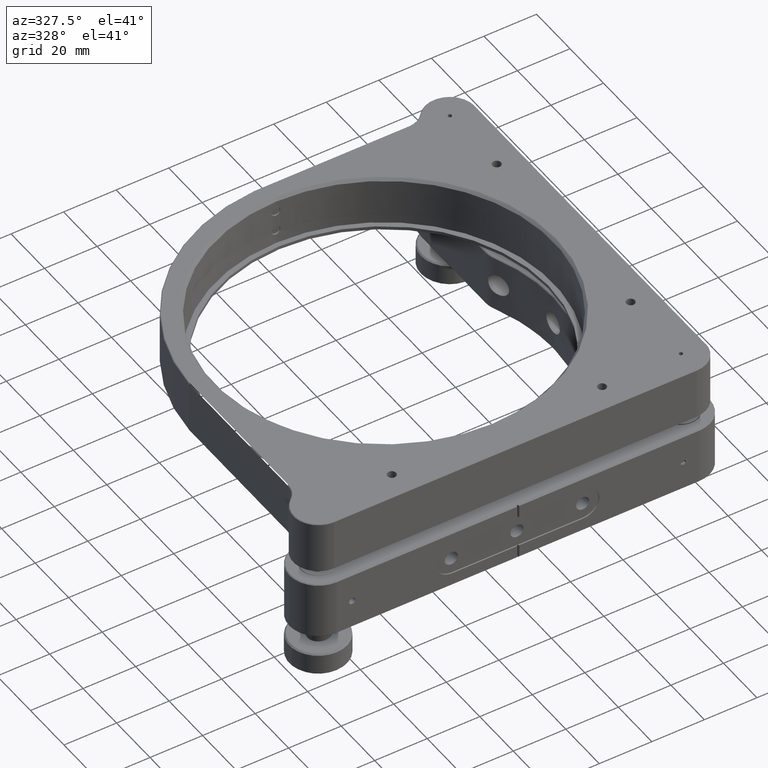
[diagram: clean part render]
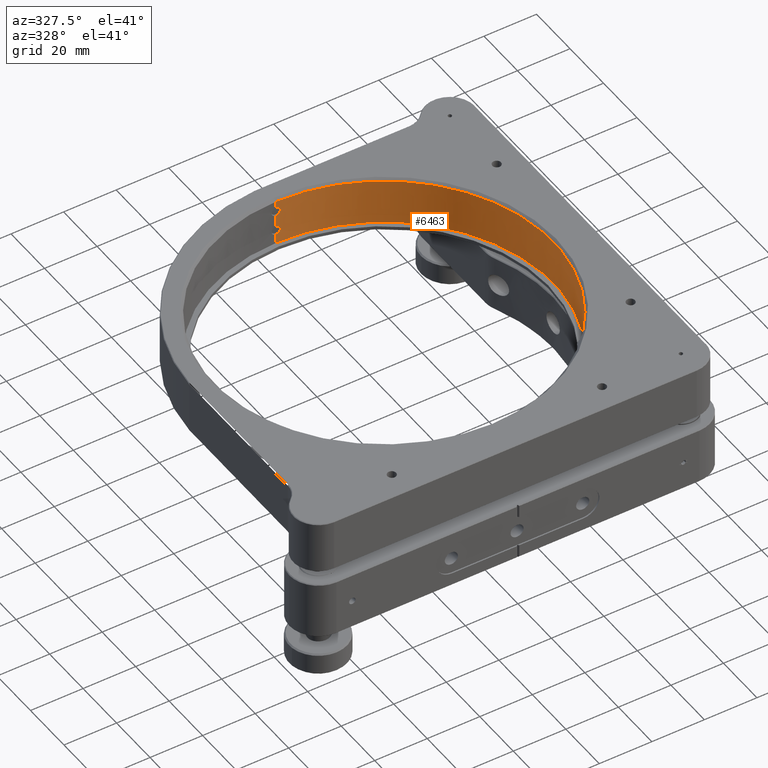
[diagram: same view with one face highlighted and labeled with its STEP entity id]
A machine part, auxiliary view. The second image highlights one B-rep face of the part: STEP entity #6463.
In plain terms, the highlighted cylindrical surface (partial cylindrical patch) has radius 64.5 mm, axis along (0, -0, 1).
Its self-contained STEP definition (entity closure, byte-faithful):
#49 = CARTESIAN_POINT ( 'NONE',  ( 1.483389418160524942, 64.48295332111487710, 29.41889207625427005 ) ) ;
#111 = VERTEX_POINT ( 'NONE', #7603 ) ;
#493 = CARTESIAN_POINT ( 'NONE',  ( 0.4345575816018733550, 64.49884148809803719, 28.54330444036808601 ) ) ;
#891 = CARTESIAN_POINT ( 'NONE',  ( 1.243653708613569275, 64.48805407642646514, 29.05980491757268780 ) ) ;
#974 = CARTESIAN_POINT ( 'NONE',  ( 1.565235788478800405, 64.48101855675774630, 22.68260206664128731 ) ) ;
#1029 = DIRECTION ( 'NONE',  ( -6.383782391594628414E-16, 1.000000000000000000, 0.000000000000000000 ) ) ;
#1142 = CARTESIAN_POINT ( 'NONE',  ( 1.482380926038727953, 64.48297654405071455, 22.88210197707731908 ) ) ;
#1205 = VERTEX_POINT ( 'NONE', #6742 ) ;
#1315 = CARTESIAN_POINT ( 'NONE',  ( 1.311710810243492675, 64.48668865513950266, 31.15625234921494879 ) ) ;
#1395 = CARTESIAN_POINT ( 'NONE',  ( 1.242015895805314907, 64.48808565504012336, 31.24103801797199509 ) ) ;
#1602 = DIRECTION ( 'NONE',  ( -1.460576560598794809E-21, 9.396343987072984124E-36, -1.000000000000000000 ) ) ;
#1708 = EDGE_CURVE ( 'NONE', #111, #17108, #4916, .T. ) ;
#1731 = CARTESIAN_POINT ( 'NONE',  ( -6.893123849958146566E-14, 64.50000000000132161, -167.0340546095175966 ) ) ;
#2105 = CIRCLE ( 'NONE', #11532, 64.50000000000137845 ) ;
#2232 = CARTESIAN_POINT ( 'NONE',  ( 0.8294962466272529644, 64.49497166998335729, 31.59193023313750714 ) ) ;
#2371 = CARTESIAN_POINT ( 'NONE',  ( -6.893095707050450094E-14, 64.49999999999992895, 34.39949493661166713 ) ) ;
#2401 = ORIENTED_EDGE ( 'NONE', *, *, #2573, .T. ) ;
#2486 = CARTESIAN_POINT ( 'NONE',  ( 1.639162032005684555, 64.47917175699497250, 22.36677457183865414 ) ) ;
#2573 = EDGE_CURVE ( 'NONE', #14255, #1205, #2610, .T. ) ;
#2610 = LINE ( 'NONE', #7824, #9097 ) ;
#2711 = CIRCLE ( 'NONE', #11561, 64.50000000000137845 ) ;
#2999 = CARTESIAN_POINT ( 'NONE',  ( -6.893123849958146566E-14, 64.50000000000132161, -167.0340546095175966 ) ) ;
#3224 = CARTESIAN_POINT ( 'NONE',  ( -6.751036948072414653E-14, 64.49999999999992895, 23.79949493661167281 ) ) ;
#3448 = B_SPLINE_CURVE_WITH_KNOTS ( 'NONE', 3,
 ( #15914, #5271, #11974, #17339, #14914, #5087, #13326, #16177, #1142, #974, #17516, #2486, #17424, #14831, #3743, #7683, #17248, #9102, #7957, #15997, #9193, #12158, #6612, #3836 ),
 .UNSPECIFIED., .F., .F.,
 ( 4, 2, 2, 2, 2, 2, 2, 2, 2, 2, 2, 4 ),
 ( 0.005158864502285044271, 0.005803576667448827504, 0.006448288832612610738, 0.006770644915194498452, 0.007093000997776386166, 0.007415357080358274747, 0.007737713162940162460, 0.008382425328103949164, 0.008704781410685836010, 0.009027137493267724591, 0.009671849658431493080, 0.01031656182359525983 ),
 .UNSPECIFIED. ) ;
#3593 = CARTESIAN_POINT ( 'NONE',  ( 1.313278360762342167, 64.48665653029959799, 29.14480393818622161 ) ) ;
#3606 = EDGE_CURVE ( 'NONE', #10646, #11660, #3448, .T. ) ;
#3721 = ORIENTED_EDGE ( 'NONE', *, *, #1708, .T. ) ;
#3743 = CARTESIAN_POINT ( 'NONE',  ( 1.607526416854107021, 64.48001792443226066, 21.71907927587301756 ) ) ;
#3804 = DIRECTION ( 'NONE',  ( 1.460576560598794809E-21, -9.396343987072984124E-36, 1.000000000000000000 ) ) ;
#3836 = CARTESIAN_POINT ( 'NONE',  ( -6.728123702509371868E-14, 64.50000000000127898, 20.49949493661169342 ) ) ;
#4046 = ORIENTED_EDGE ( 'NONE', *, *, #16078, .F. ) ;
#4235 = ORIENTED_EDGE ( 'NONE', *, *, #16184, .T. ) ;
#4507 = LINE ( 'NONE', #1731, #14421 ) ;
#4861 = CARTESIAN_POINT ( 'NONE',  ( -6.728123702509371868E-14, 64.50000000000127898, 20.49949493661169342 ) ) ;
#4916 = B_SPLINE_CURVE_WITH_KNOTS ( 'NONE', 3,
 ( #14909, #8129, #13573, #2232, #13653, #1395, #1315, #9119, #13736, #10986, #13158, #10897, #6869, #12318, #6957, #49, #15846, #3593, #891, #17269, #11150, #493, #8552, #7215 ),
 .UNSPECIFIED., .F., .F.,
 ( 4, 2, 2, 2, 2, 2, 2, 2, 2, 2, 2, 4 ),
 ( 0.005158864502285046873, 0.005803576667448824902, 0.006448288832612603799, 0.006770644915194493248, 0.007093000997776382696, 0.007415357080358273012, 0.007737713162940161593, 0.008382425328103950898, 0.008704781410685841214, 0.009027137493267729795, 0.009671849658431500019, 0.01031656182359527024 ),
 .UNSPECIFIED. ) ;
#5087 = CARTESIAN_POINT ( 'NONE',  ( 1.242015895805317127, 64.48808565504012336, 23.24103801797199509 ) ) ;
#5245 = ORIENTED_EDGE ( 'NONE', *, *, #14524, .F. ) ;
#5271 = CARTESIAN_POINT ( 'NONE',  ( 0.2153321616079469369, 64.49999999999994316, 23.79949493661167281 ) ) ;
#5768 = AXIS2_PLACEMENT_3D ( 'NONE', #6273, #5922, #16823 ) ;
#5922 = DIRECTION ( 'NONE',  ( 1.460576560598794809E-21, -9.396343987072984124E-36, 1.000000000000000000 ) ) ;
#5971 = CARTESIAN_POINT ( 'NONE',  ( -6.893095707050450094E-14, 64.49999999999992895, 16.89949493661167423 ) ) ;
#6273 = CARTESIAN_POINT ( 'NONE',  ( -2.775584207379523725E-14, -5.551115123125781440E-14, -167.0340546095175966 ) ) ;
#6318 = LINE ( 'NONE', #16772, #16919 ) ;
#6463 = ADVANCED_FACE ( 'NONE', ( #12992 ), #17082, .F. ) ;
#6612 = CARTESIAN_POINT ( 'NONE',  ( 0.2179989111152741410, 64.50000000000126477, 20.49949493661168987 ) ) ;
#6742 = CARTESIAN_POINT ( 'NONE',  ( 48.24906733348465337, -42.80511069310593086, 34.39949493661166713 ) ) ;
#6869 = CARTESIAN_POINT ( 'NONE',  ( 1.649908270156337675, 64.47889424228966959, 30.25967762657676374 ) ) ;
#6957 = CARTESIAN_POINT ( 'NONE',  ( 1.607526416854107021, 64.48001792443226066, 29.71907927587301756 ) ) ;
#7215 = CARTESIAN_POINT ( 'NONE',  ( -6.756922481435570043E-14, 64.50000000000127898, 28.49949493661168987 ) ) ;
#7603 = CARTESIAN_POINT ( 'NONE',  ( -6.893094808313105439E-14, 64.49999999999992895, 31.79949493661167637 ) ) ;
#7683 = CARTESIAN_POINT ( 'NONE',  ( 1.483389418160524720, 64.48295332111484868, 21.41889207625427360 ) ) ;
#7824 = CARTESIAN_POINT ( 'NONE',  ( 48.24906733348464627, -42.80511069310593797, -167.0340546095175966 ) ) ;
#7957 = CARTESIAN_POINT ( 'NONE',  ( 1.243653708613570830, 64.48805407642645093, 21.05980491757268069 ) ) ;
#8129 = CARTESIAN_POINT ( 'NONE',  ( 0.2153321616079445500, 64.49999999999992895, 31.79949493661168702 ) ) ;
#8552 = CARTESIAN_POINT ( 'NONE',  ( 0.2179989111152746684, 64.50000000000126477, 28.49949493661168631 ) ) ;
#8733 = DIRECTION ( 'NONE',  ( 1.460576560598794809E-21, -9.396343987072984124E-36, 1.000000000000000000 ) ) ;
#9097 = VECTOR ( 'NONE', #13616, 1000.000000000000000 ) ;
#9102 = CARTESIAN_POINT ( 'NONE',  ( 1.313278360762341279, 64.48665653029961220, 21.14480393818622161 ) ) ;
#9119 = CARTESIAN_POINT ( 'NONE',  ( 1.431666250983887112, 64.48413704703200722, 30.97682648039264208 ) ) ;
#9193 = CARTESIAN_POINT ( 'NONE',  ( 0.8314948767786621842, 64.49494561489616729, 20.70820923563434945 ) ) ;
#9837 = ORIENTED_EDGE ( 'NONE', *, *, #11214, .F. ) ;
#9888 = DIRECTION ( 'NONE',  ( 1.460576560598794809E-21, -9.396343987072984124E-36, 1.000000000000000000 ) ) ;
#10528 = CARTESIAN_POINT ( 'NONE',  ( -2.775554786467395347E-14, -5.551115123125781440E-14, 34.39949493661166713 ) ) ;
#10646 = VERTEX_POINT ( 'NONE', #3224 ) ;
#10897 = CARTESIAN_POINT ( 'NONE',  ( 1.639162032005684333, 64.47917175699498671, 30.36677457183865059 ) ) ;
#10986 = CARTESIAN_POINT ( 'NONE',  ( 1.565235788478800849, 64.48101855675778893, 30.68260206664127665 ) ) ;
#11150 = CARTESIAN_POINT ( 'NONE',  ( 0.8314948767786622952, 64.49494561489618150, 28.70820923563436011 ) ) ;
#11214 = EDGE_CURVE ( 'NONE', #13938, #11660, #6318, .T. ) ;
#11267 = VERTEX_POINT ( 'NONE', #2371 ) ;
#11532 = AXIS2_PLACEMENT_3D ( 'NONE', #12621, #1602, #13949 ) ;
#11561 = AXIS2_PLACEMENT_3D ( 'NONE', #10528, #3804, #1029 ) ;
#11660 = VERTEX_POINT ( 'NONE', #4861 ) ;
#11974 = CARTESIAN_POINT ( 'NONE',  ( 0.4323516286295954747, 64.49885663176011974, 23.75627920248363623 ) ) ;
#12158 = CARTESIAN_POINT ( 'NONE',  ( 0.4345575816018734105, 64.49884148809803719, 20.54330444036807890 ) ) ;
#12318 = CARTESIAN_POINT ( 'NONE',  ( 1.650181722545172258, 64.47888724470843158, 29.93327656789271884 ) ) ;
#12621 = CARTESIAN_POINT ( 'NONE',  ( -2.775557342476376542E-14, -5.551115123125781440E-14, 16.89949493661167423 ) ) ;
#12633 = EDGE_LOOP ( 'NONE', ( #9837, #14460, #2401, #4235, #5245, #3721, #4046, #16563 ) ) ;
#12893 = CARTESIAN_POINT ( 'NONE',  ( -6.756922481435570043E-14, 64.50000000000127898, 28.49949493661168987 ) ) ;
#12992 = FACE_OUTER_BOUND ( 'NONE', #12633, .T. ) ;
#13158 = CARTESIAN_POINT ( 'NONE',  ( 1.597097479043168677, 64.48022737458099130, 30.57767976759863515 ) ) ;
#13326 = CARTESIAN_POINT ( 'NONE',  ( 1.311710810243495118, 64.48668865513950266, 23.15625234921494524 ) ) ;
#13573 = CARTESIAN_POINT ( 'NONE',  ( 0.4323516286295930322, 64.49885663176010553, 31.75627920248362557 ) ) ;
#13616 = DIRECTION ( 'NONE',  ( 1.460576560598794809E-21, -9.396343987072984124E-36, 1.000000000000000000 ) ) ;
#13653 = CARTESIAN_POINT ( 'NONE',  ( 1.013679753256723215, 64.49221374016208586, 31.46905262516969159 ) ) ;
#13736 = CARTESIAN_POINT ( 'NONE',  ( 1.482380926038727953, 64.48297654405071455, 30.88210197707732263 ) ) ;
#13938 = VERTEX_POINT ( 'NONE', #5971 ) ;
#13949 = DIRECTION ( 'NONE',  ( -6.383782391594627428E-16, 1.000000000000000000, 0.000000000000000000 ) ) ;
#14255 = VERTEX_POINT ( 'NONE', #16422 ) ;
#14421 = VECTOR ( 'NONE', #9888, 1000.000000000000000 ) ;
#14460 = ORIENTED_EDGE ( 'NONE', *, *, #15446, .T. ) ;
#14524 = EDGE_CURVE ( 'NONE', #111, #11267, #4507, .T. ) ;
#14831 = CARTESIAN_POINT ( 'NONE',  ( 1.650181722545171814, 64.47888724470841737, 21.93327656789271529 ) ) ;
#14909 = CARTESIAN_POINT ( 'NONE',  ( -6.893094808313105439E-14, 64.49999999999992895, 31.79949493661167637 ) ) ;
#14914 = CARTESIAN_POINT ( 'NONE',  ( 1.013679753256727212, 64.49221374016210007, 23.46905262516969159 ) ) ;
#15255 = DIRECTION ( 'NONE',  ( 1.460576560598794809E-21, -9.396343987072984124E-36, 1.000000000000000000 ) ) ;
#15337 = LINE ( 'NONE', #2999, #17268 ) ;
#15446 = EDGE_CURVE ( 'NONE', #13938, #14255, #2105, .T. ) ;
#15846 = CARTESIAN_POINT ( 'NONE',  ( 1.432758764911664873, 64.48411256139958425, 29.32408208431741770 ) ) ;
#15914 = CARTESIAN_POINT ( 'NONE',  ( -6.751036948072414653E-14, 64.49999999999992895, 23.79949493661167281 ) ) ;
#15997 = CARTESIAN_POINT ( 'NONE',  ( 1.015353652629824577, 64.49218735168095407, 20.83118067276639351 ) ) ;
#16078 = EDGE_CURVE ( 'NONE', #10646, #17108, #15337, .T. ) ;
#16177 = CARTESIAN_POINT ( 'NONE',  ( 1.431666250983889110, 64.48413704703197880, 22.97682648039264564 ) ) ;
#16184 = EDGE_CURVE ( 'NONE', #1205, #11267, #2711, .T. ) ;
#16422 = CARTESIAN_POINT ( 'NONE',  ( 48.24906733348465337, -42.80511069310593086, 16.89949493661167423 ) ) ;
#16563 = ORIENTED_EDGE ( 'NONE', *, *, #3606, .T. ) ;
#16772 = CARTESIAN_POINT ( 'NONE',  ( -6.893123849958146566E-14, 64.50000000000132161, -167.0340546095175966 ) ) ;
#16823 = DIRECTION ( 'NONE',  ( -6.383782391594628414E-16, 1.000000000000000000, 0.000000000000000000 ) ) ;
#16919 = VECTOR ( 'NONE', #8733, 1000.000000000000000 ) ;
#17082 = CYLINDRICAL_SURFACE ( 'NONE', #5768, 64.50000000000137845 ) ;
#17108 = VERTEX_POINT ( 'NONE', #12893 ) ;
#17248 = CARTESIAN_POINT ( 'NONE',  ( 1.432758764911664207, 64.48411256139955583, 21.32408208431741059 ) ) ;
#17268 = VECTOR ( 'NONE', #15255, 1000.000000000000000 ) ;
#17269 = CARTESIAN_POINT ( 'NONE',  ( 1.015353652629822800, 64.49218735168095407, 28.83118067276640062 ) ) ;
#17339 = CARTESIAN_POINT ( 'NONE',  ( 0.8294962466272551849, 64.49497166998335729, 23.59193023313751780 ) ) ;
#17424 = CARTESIAN_POINT ( 'NONE',  ( 1.649908270156337231, 64.47889424228965538, 22.25967762657676019 ) ) ;
#17516 = CARTESIAN_POINT ( 'NONE',  ( 1.597097479043168677, 64.48022737458099130, 22.57767976759864581 ) ) ;